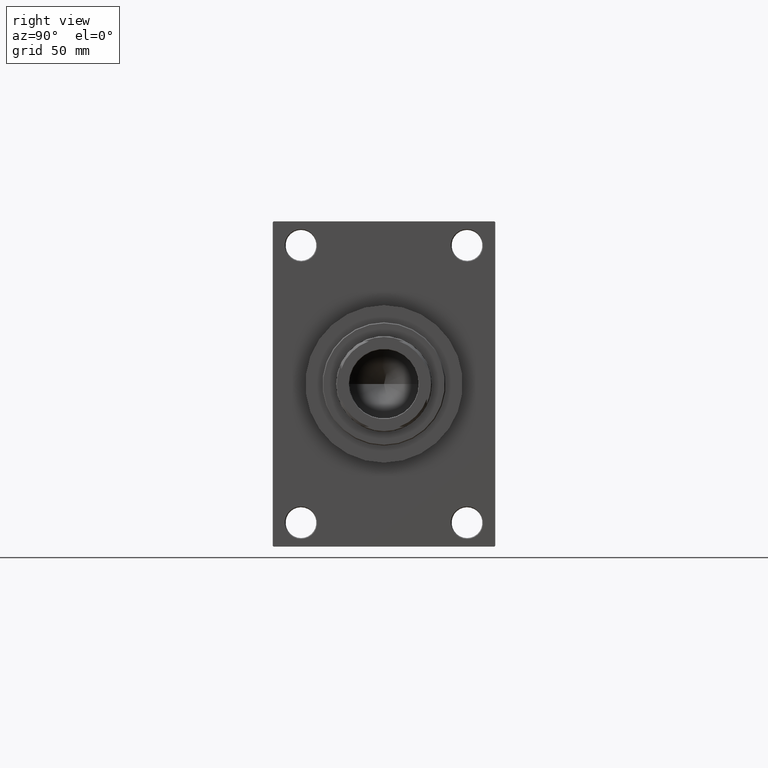
[diagram: clean part render]
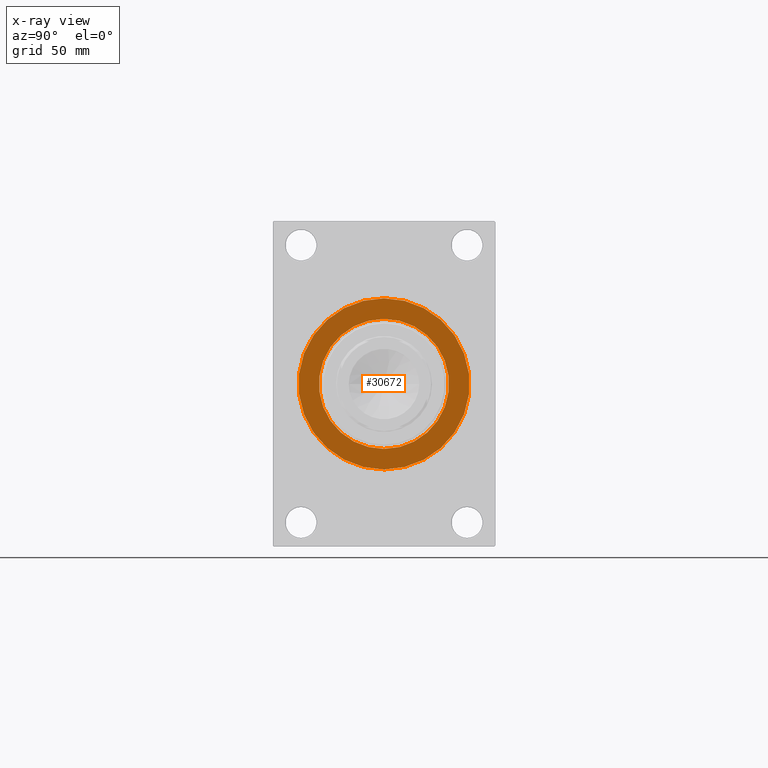
[diagram: x-ray — body ghosted, one internal face saturated and labeled with its STEP entity id]
A machine part, right view, then the same camera in x-ray: the body is ghosted and one INTERNAL B-rep face — a face not visible from any outside direction — is saturated and labeled: STEP entity #30672.
In plain terms, the highlighted planar face has unit normal (-1, 0, 0).
Its self-contained STEP definition (entity closure, byte-faithful):
#40 = VERTEX_POINT ( 'NONE', #22767 ) ;
#1475 = ORIENTED_EDGE ( 'NONE', *, *, #3318, .F. ) ;
#3318 = EDGE_CURVE ( 'NONE', #4130, #21564, #30317, .T. ) ;
#4130 = VERTEX_POINT ( 'NONE', #20281 ) ;
#4931 = AXIS2_PLACEMENT_3D ( 'NONE', #10082, #9858, #25019 ) ;
#5195 = CIRCLE ( 'NONE', #42969, 38.00000000000000000 ) ;
#5668 = EDGE_CURVE ( 'NONE', #7396, #40, #5748, .T. ) ;
#5748 = CIRCLE ( 'NONE', #32702, 38.00000000000000000 ) ;
#5946 = AXIS2_PLACEMENT_3D ( 'NONE', #33386, #30257, #18909 ) ;
#6074 = CARTESIAN_POINT ( 'NONE',  ( 232.9999999999999716, -2.602085213965210642E-15, 50.00000000000000000 ) ) ;
#6745 = DIRECTION ( 'NONE',  ( -1.000000000000000000, 0.000000000000000000, -0.000000000000000000 ) ) ;
#7396 = VERTEX_POINT ( 'NONE', #40497 ) ;
#8355 = DIRECTION ( 'NONE',  ( 1.000000000000000000, 0.000000000000000000, 0.000000000000000000 ) ) ;
#9858 = DIRECTION ( 'NONE',  ( -1.000000000000000000, 0.000000000000000000, -0.000000000000000000 ) ) ;
#9990 = DIRECTION ( 'NONE',  ( 0.000000000000000000, 0.000000000000000000, 1.000000000000000000 ) ) ;
#10082 = CARTESIAN_POINT ( 'NONE',  ( 232.9999999999999716, 0.000000000000000000, 0.000000000000000000 ) ) ;
#12893 = ORIENTED_EDGE ( 'NONE', *, *, #42517, .F. ) ;
#13936 = FACE_BOUND ( 'NONE', #14512, .T. ) ;
#14220 = DIRECTION ( 'NONE',  ( 0.000000000000000000, 0.000000000000000000, 1.000000000000000000 ) ) ;
#14512 = EDGE_LOOP ( 'NONE', ( #12893, #25655 ) ) ;
#15832 = DIRECTION ( 'NONE',  ( 0.000000000000000000, 0.000000000000000000, -1.000000000000000000 ) ) ;
#16049 = EDGE_CURVE ( 'NONE', #21564, #4130, #33716, .T. ) ;
#18909 = DIRECTION ( 'NONE',  ( 0.000000000000000000, 0.000000000000000000, -1.000000000000000000 ) ) ;
#20281 = CARTESIAN_POINT ( 'NONE',  ( 232.9999999999999716, 3.521148781771555838E-15, -50.00000000000000000 ) ) ;
#21233 = CARTESIAN_POINT ( 'NONE',  ( 232.9999999999999716, 0.000000000000000000, 0.000000000000000000 ) ) ;
#21564 = VERTEX_POINT ( 'NONE', #6074 ) ;
#21646 = FACE_OUTER_BOUND ( 'NONE', #36300, .T. ) ;
#22767 = CARTESIAN_POINT ( 'NONE',  ( 232.9999999999999716, 0.000000000000000000, -38.00000000000000000 ) ) ;
#25019 = DIRECTION ( 'NONE',  ( -0.000000000000000000, 0.000000000000000000, 1.000000000000000000 ) ) ;
#25655 = ORIENTED_EDGE ( 'NONE', *, *, #5668, .F. ) ;
#30257 = DIRECTION ( 'NONE',  ( 1.000000000000000000, 0.000000000000000000, 0.000000000000000000 ) ) ;
#30317 = CIRCLE ( 'NONE', #43407, 50.00000000000000000 ) ;
#30672 = ADVANCED_FACE ( 'NONE', ( #13936, #21646 ), #39777, .T. ) ;
#30797 = CARTESIAN_POINT ( 'NONE',  ( 232.9999999999999716, -2.602085213965210642E-15, 0.000000000000000000 ) ) ;
#32659 = CARTESIAN_POINT ( 'NONE',  ( 232.9999999999999716, 0.000000000000000000, 0.000000000000000000 ) ) ;
#32702 = AXIS2_PLACEMENT_3D ( 'NONE', #32659, #44021, #9990 ) ;
#33386 = CARTESIAN_POINT ( 'NONE',  ( 232.9999999999999716, -2.602085213965210642E-15, 0.000000000000000000 ) ) ;
#33716 = CIRCLE ( 'NONE', #5946, 50.00000000000000000 ) ;
#36300 = EDGE_LOOP ( 'NONE', ( #36988, #1475 ) ) ;
#36988 = ORIENTED_EDGE ( 'NONE', *, *, #16049, .F. ) ;
#39777 = PLANE ( 'NONE',  #4931 ) ;
#40497 = CARTESIAN_POINT ( 'NONE',  ( 232.9999999999999716, 4.653657836759941941E-15, 38.00000000000000000 ) ) ;
#42517 = EDGE_CURVE ( 'NONE', #40, #7396, #5195, .T. ) ;
#42969 = AXIS2_PLACEMENT_3D ( 'NONE', #21233, #6745, #14220 ) ;
#43407 = AXIS2_PLACEMENT_3D ( 'NONE', #30797, #8355, #15832 ) ;
#44021 = DIRECTION ( 'NONE',  ( -1.000000000000000000, 0.000000000000000000, -0.000000000000000000 ) ) ;